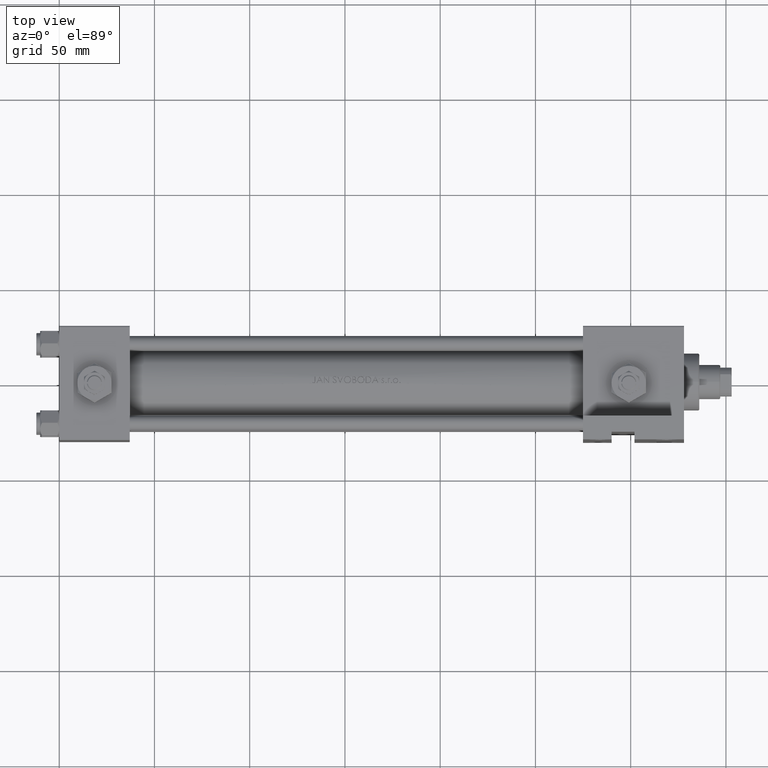
[diagram: clean part render]
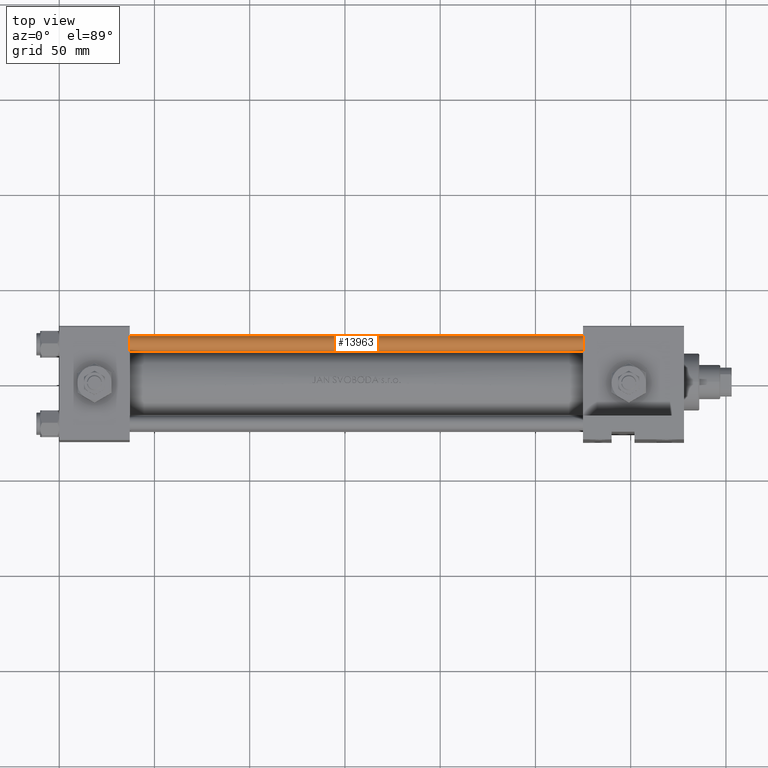
[diagram: same view with one face highlighted and labeled with its STEP entity id]
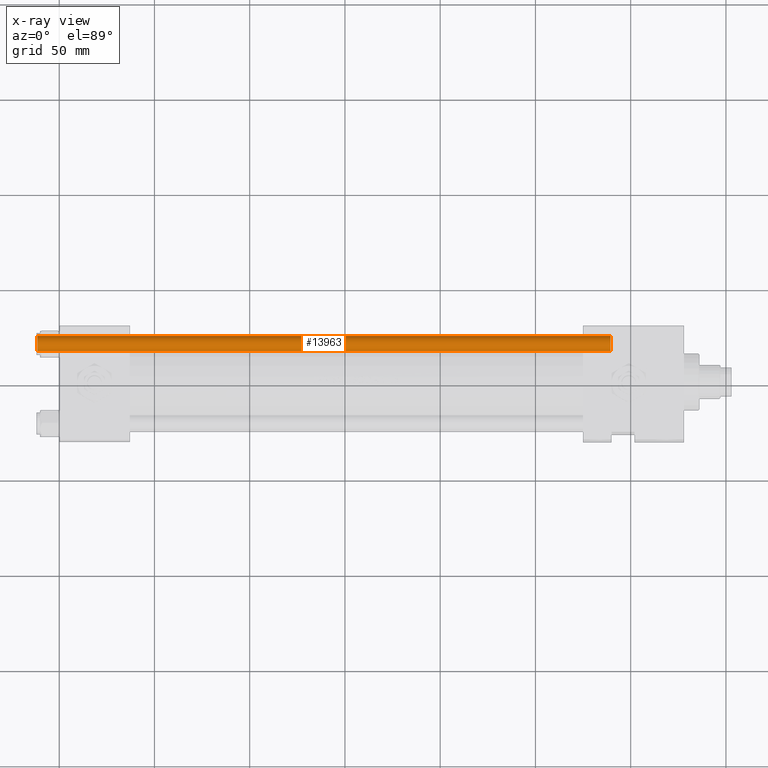
[diagram: x-ray of the same camera — body ghosted, the highlighted face saturated]
A machine part, top view. The second image highlights one B-rep face of the part: STEP entity #13963.
The next image is the same camera in x-ray: the body ghosted, the highlighted face saturated — about 0% of this face is hidden behind the body in this view.
In plain terms, the highlighted cylindrical surface (edge-blend (fillet) strip) has radius 4 mm, axis along (1, -0, 0).
Its self-contained STEP definition (entity closure, byte-faithful):
#2117 = ORIENTED_EDGE ( 'NONE', *, *, #38531, .T. ) ;
#2526 = VERTEX_POINT ( 'NONE', #41020 ) ;
#3484 = CIRCLE ( 'NONE', #32153, 4.000000000000000000 ) ;
#6220 = VERTEX_POINT ( 'NONE', #11478 ) ;
#6856 = CARTESIAN_POINT ( 'NONE',  ( 0.000000000000000000, 0.000000000000000000, 302.0000000000000000 ) ) ;
#6865 = EDGE_CURVE ( 'NONE', #2526, #38913, #40602, .T. ) ;
#7809 = ORIENTED_EDGE ( 'NONE', *, *, #50524, .F. ) ;
#8206 = LINE ( 'NONE', #8968, #47820 ) ;
#8968 = CARTESIAN_POINT ( 'NONE',  ( 4.000000000000000000, 4.898587196589412829E-16, 302.0000000000000000 ) ) ;
#10437 = FACE_OUTER_BOUND ( 'NONE', #47057, .T. ) ;
#11478 = CARTESIAN_POINT ( 'NONE',  ( 4.000000000000000000, 4.898587196589412829E-16, 0.5000000000000559552 ) ) ;
#13963 = ADVANCED_FACE ( 'NONE', ( #10437 ), #14778, .T. ) ;
#14778 = CYLINDRICAL_SURFACE ( 'NONE', #29932, 4.000000000000000000 ) ;
#16507 = ORIENTED_EDGE ( 'NONE', *, *, #33060, .T. ) ;
#17232 = CARTESIAN_POINT ( 'NONE',  ( -4.000000000000000000, 0.000000000000000000, 302.0000000000000000 ) ) ;
#17636 = VECTOR ( 'NONE', #48798, 1000.000000000000000 ) ;
#19003 = CARTESIAN_POINT ( 'NONE',  ( -4.000000000000000000, 0.000000000000000000, 0.5000000000000559552 ) ) ;
#19860 = CIRCLE ( 'NONE', #26418, 4.000000000000000000 ) ;
#22660 = DIRECTION ( 'NONE',  ( 0.000000000000000000, 0.000000000000000000, -1.000000000000000000 ) ) ;
#23388 = ORIENTED_EDGE ( 'NONE', *, *, #6865, .T. ) ;
#24045 = DIRECTION ( 'NONE',  ( -0.000000000000000000, -0.000000000000000000, 1.000000000000000000 ) ) ;
#24994 = CARTESIAN_POINT ( 'NONE',  ( 0.000000000000000000, 0.000000000000000000, 0.5000000000000559552 ) ) ;
#26418 = AXIS2_PLACEMENT_3D ( 'NONE', #30319, #22660, #50110 ) ;
#27772 = VERTEX_POINT ( 'NONE', #28455 ) ;
#28455 = CARTESIAN_POINT ( 'NONE',  ( 4.000000000000000000, 4.898587196589412829E-16, 301.4999999999999432 ) ) ;
#29932 = AXIS2_PLACEMENT_3D ( 'NONE', #6856, #45359, #34067 ) ;
#30319 = CARTESIAN_POINT ( 'NONE',  ( 0.000000000000000000, 0.000000000000000000, 301.4999999999999432 ) ) ;
#31807 = DIRECTION ( 'NONE',  ( -0.000000000000000000, -0.000000000000000000, -1.000000000000000000 ) ) ;
#32153 = AXIS2_PLACEMENT_3D ( 'NONE', #24994, #24045, #33444 ) ;
#33060 = EDGE_CURVE ( 'NONE', #27772, #2526, #19860, .T. ) ;
#33444 = DIRECTION ( 'NONE',  ( 1.000000000000000000, 0.000000000000000000, 0.000000000000000000 ) ) ;
#34067 = DIRECTION ( 'NONE',  ( -1.000000000000000000, 0.000000000000000000, 0.000000000000000000 ) ) ;
#38531 = EDGE_CURVE ( 'NONE', #38913, #6220, #3484, .T. ) ;
#38913 = VERTEX_POINT ( 'NONE', #19003 ) ;
#40602 = LINE ( 'NONE', #17232, #17636 ) ;
#41020 = CARTESIAN_POINT ( 'NONE',  ( -4.000000000000000000, 0.000000000000000000, 301.4999999999999432 ) ) ;
#45359 = DIRECTION ( 'NONE',  ( -0.000000000000000000, -0.000000000000000000, -1.000000000000000000 ) ) ;
#47057 = EDGE_LOOP ( 'NONE', ( #7809, #16507, #23388, #2117 ) ) ;
#47820 = VECTOR ( 'NONE', #31807, 1000.000000000000000 ) ;
#48798 = DIRECTION ( 'NONE',  ( -0.000000000000000000, -0.000000000000000000, -1.000000000000000000 ) ) ;
#50110 = DIRECTION ( 'NONE',  ( 1.000000000000000000, 0.000000000000000000, 0.000000000000000000 ) ) ;
#50524 = EDGE_CURVE ( 'NONE', #27772, #6220, #8206, .T. ) ;